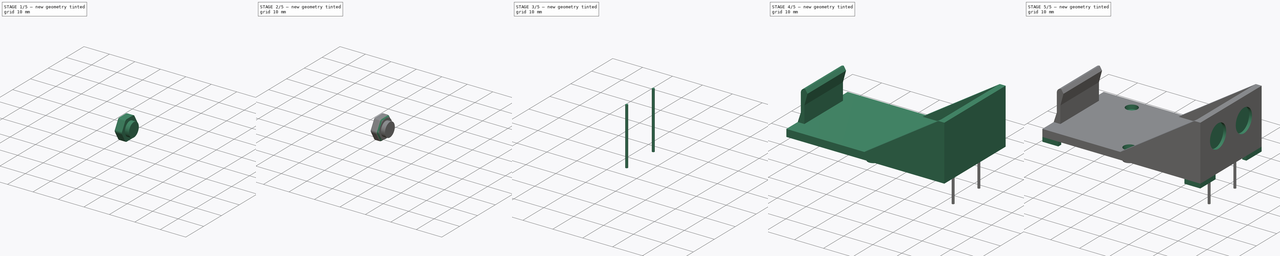
[diagram: build sequence overview — one tinted view per stage of 5, left to right]
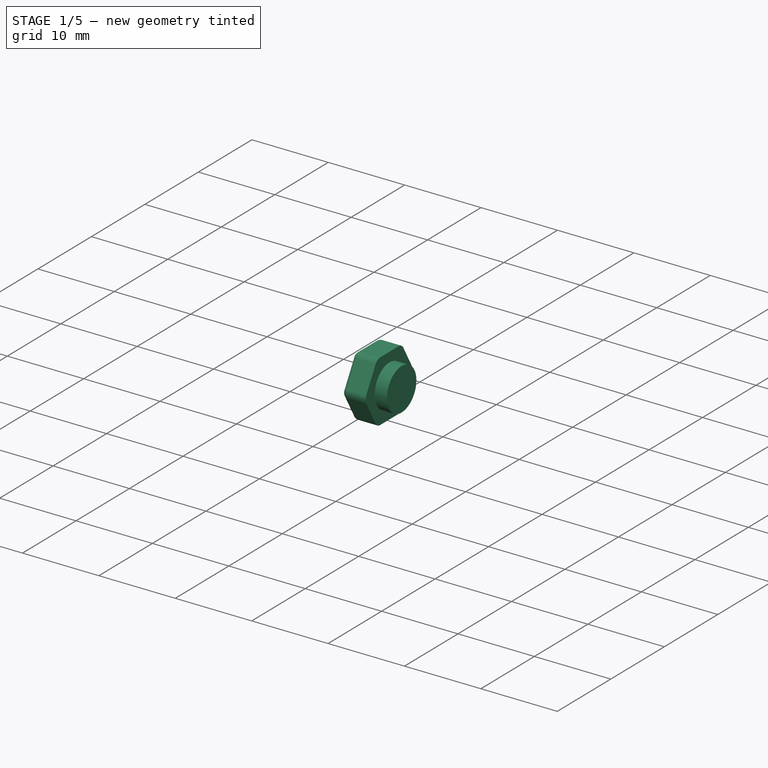
[diagram: stage 1 of 5 — iso view after this stage's code; geometry added in this stage tinted green]
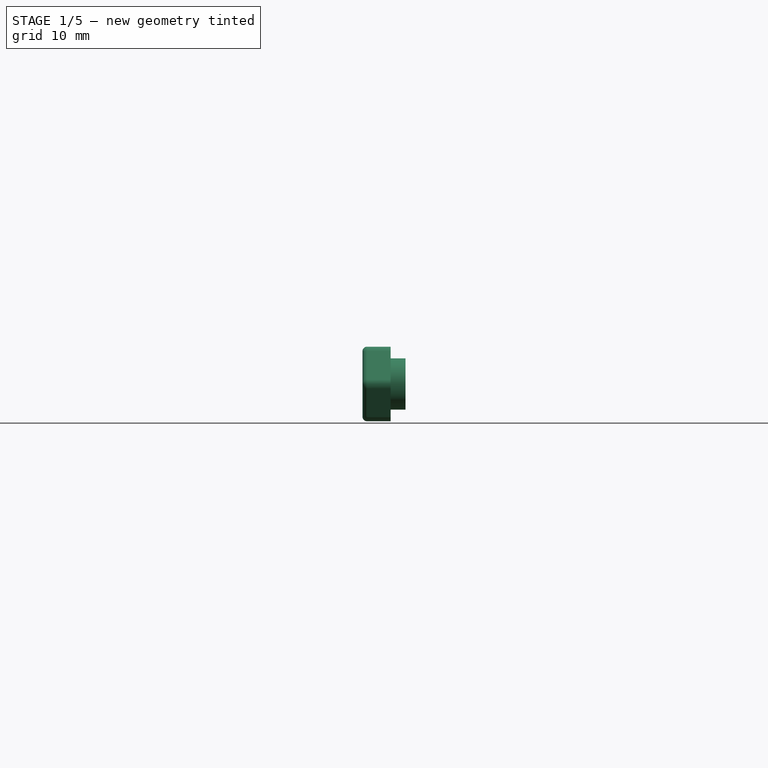
[diagram: stage 1 of 5 — front view after this stage's code; geometry added in this stage tinted green]
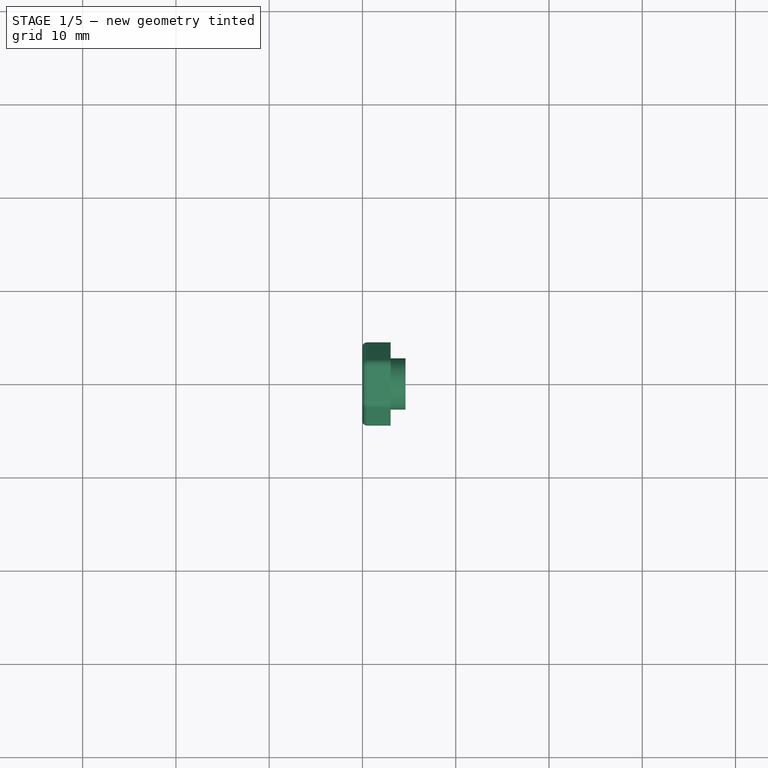
[diagram: stage 1 of 5 — top view after this stage's code; geometry added in this stage tinted green]
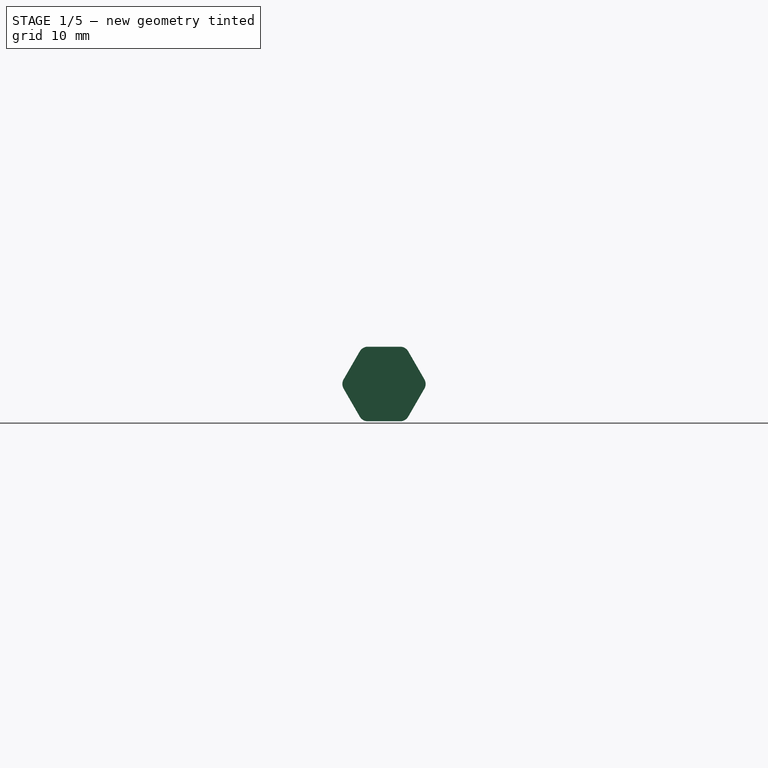
[diagram: stage 1 of 5 — right view after this stage's code; geometry added in this stage tinted green]
FCSTD DOCUMENT  (FreeCAD 0.18R4 (GitTag))
Label: BatteryHolder_Eagle_12BH611-GR
License: All rights reserved
LicenseURL: http://en.wikipedia.org/wiki/All_rights_reserved
objects: Sketcher::SketchObject×18, PartDesign::Pocket×10, PartDesign::Pad×8, PartDesign::Fillet×7, PartDesign::Body×4, PartDesign::Mirrored×2, Part::Feature×2, PartDesign::MultiTransform×1, Part::FeaturePython×1, App::Part×1
note: 71 computed .brp shape members not serialized (recipe doc carries the construction recipe); baked Part::Feature solids carry a one-line shape summary decoded from their .brp

FEATURE [Part::Feature] Fusion001  label="Eyelet_bended_Anode"
  Placement = pos=(26.6,-6.35,11.5) rot=(0.57735,0.57735,0.57735;2.0944rad)
  shape: bbox 8.511 x 5.54 x 13.94 mm, 23 faces (baked)
FEATURE [Part::Feature] Fusion002  label="Eyelet_bended_Cathode"
  Placement = pos=(26.6,6.35,11.5) rot=(0.57735,0.57735,0.57735;2.0944rad)
  shape: bbox 8.511 x 5.54 x 13.94 mm, 23 faces (baked)
FEATURE [Sketcher::SketchObject] Sketch009  label="Sketch_OuterHeagon"
  MapMode = 5
  Placement = pos=(0,0,0) rot=(0.57735,0.57735,0.57735;2.0944rad)
  Support = -> [YZ_Plane001]
  sketch-geometry (7):
    g0: LineSegment StartX=4.6188 StartY=0 StartZ=0 EndX=2.3094 EndY=4 EndZ=0
    g1: LineSegment StartX=2.3094 StartY=4 StartZ=0 EndX=-2.3094 EndY=4 EndZ=0
    g2: LineSegment StartX=-2.3094 StartY=4 StartZ=0 EndX=-4.6188 EndY=9e-16 EndZ=0
    g3: LineSegment StartX=-4.6188 StartY=9e-16 StartZ=0 EndX=-2.3094 EndY=-4 EndZ=0
    g4: LineSegment StartX=-2.3094 StartY=-4 StartZ=0 EndX=2.3094 EndY=-4 EndZ=0
    g5: LineSegment StartX=2.3094 StartY=-4 StartZ=0 EndX=4.6188 EndY=0 EndZ=0
    g6: Circle [constr] CenterX=0 CenterY=0 CenterZ=0 NormalX=0 NormalY=0 NormalZ=1 AngleXU=0 Radius=4.6188
  constraints (16):
    c: Coincident(g0,g1)
    c: Coincident(g1,g2)
    c: Coincident(g2,g3)
    c: Coincident(g3,g4)
    c: Coincident(g4,g5)
    c: Coincident(g5,g0)
    c: Equal(g0, g1-g5) x5
    c: PointOnObject(g0,g6)
    c: PointOnObject(g1,g6)
    c: PointOnObject(g2,g6)
    c: PointOnObject(g3,g6)
    c: PointOnObject(g4,g6)
    c: PointOnObject(g5,g6)
    c: Coincident(g6,g-1)
    c: PointOnObject(g5,g-1)
    c: DistanceY(g4,g0) = 8
FEATURE [PartDesign::Pad] Pad005  label="Pad_OuterHeagon"
  Length = 4.62
  Length2 = 100
  Placement = pos=(0,0,0) rot=(0.57735,0.57735,0.57735;2.0944rad)
  Profile = -> Sketch009
  Type = 0
FEATURE [Sketcher::SketchObject] Sketch010  label="Sketch_InnerHeagon"
  MapMode = 5
  Placement = pos=(0,0,0) rot=(0.57735,0.57735,0.57735;2.0944rad)
  Support = -> [YZ_Plane001]
  sketch-geometry (7):
    g0: LineSegment StartX=3.17543 StartY=0 StartZ=0 EndX=1.58771 EndY=2.75 EndZ=0
    g1: LineSegment StartX=1.58771 StartY=2.75 StartZ=0 EndX=-1.58771 EndY=2.75 EndZ=0
    g2: LineSegment StartX=-1.58771 StartY=2.75 StartZ=0 EndX=-3.17543 EndY=1.7635e-12 EndZ=0
    g3: LineSegment StartX=-3.17543 StartY=1.7635e-12 StartZ=0 EndX=-1.58771 EndY=-2.75 EndZ=0
    g4: LineSegment StartX=-1.58771 StartY=-2.75 StartZ=0 EndX=1.58771 EndY=-2.75 EndZ=0
    g5: LineSegment StartX=1.58771 StartY=-2.75 StartZ=0 EndX=3.17543 EndY=0 EndZ=0
    g6: Circle [constr] CenterX=0 CenterY=0 CenterZ=0 NormalX=0 NormalY=0 NormalZ=1 AngleXU=0 Radius=3.17543
  constraints (16):
    c: Coincident(g0,g1)
    c: Coincident(g1,g2)
    c: Coincident(g2,g3)
    c: Coincident(g3,g4)
    c: Coincident(g4,g5)
    c: Coincident(g5,g0)
    c: Equal(g0, g1-g5) x5
    c: PointOnObject(g0,g6)
    c: PointOnObject(g1,g6)
    c: PointOnObject(g2,g6)
    c: PointOnObject(g3,g6)
    c: PointOnObject(g4,g6)
    c: PointOnObject(g5,g6)
    c: Coincident(g6,g-1)
    c: PointOnObject(g5,g-1)
    c: DistanceY(g4,g0) = 5.5
FEATURE [PartDesign::Pocket] Pocket004  label="Pocket_InnerHeagon"
  BaseFeature = -> Pad005
  Length = 3
  Length2 = 100
  Placement = pos=(0,0,0) rot=(0.57735,0.57735,0.57735;2.0944rad)
  Profile = -> Sketch010
  Reversed = true
  Type = 0
FEATURE [PartDesign::Fillet] Fillet
  Base = -> Pocket004 [Edge6,Edge3,Edge9,Edge12,Edge13,Edge11,Edge19,Edge14,Edge15,Edge16,Edge17,Edge18]
  BaseFeature = -> Pocket004
  Placement = pos=(0,0,0) rot=(0.57735,0.57735,0.57735;2.0944rad)
  Radius = 0.5
FEATURE [PartDesign::Fillet] Fillet001
  Base = -> Fillet [Edge1,Edge4,Edge16,Edge5,Edge17,Edge33]
  BaseFeature = -> Fillet
  Placement = pos=(0,0,0) rot=(0.57735,0.57735,0.57735;2.0944rad)
  Radius = 1
FEATURE [Sketcher::SketchObject] Sketch011  label="Sketch_PocketRear"
  ExternalGeometry = -> [Fillet001]
  MapMode = 5
  Placement = pos=(4.62,-3.1e-15,2.1e-15) rot=(0.57735,0.57735,0.57735;2.0944rad)
  Support = -> [Fillet001]
  sketch-geometry (8):
    g0: Circle CenterX=0 CenterY=0 CenterZ=0 NormalX=0 NormalY=0 NormalZ=1 AngleXU=0 Radius=2.75
    g1: LineSegment StartX=4.6188 StartY=0 StartZ=0 EndX=2.3094 EndY=4 EndZ=0
    g2: LineSegment StartX=2.3094 StartY=4 StartZ=0 EndX=-2.3094 EndY=4 EndZ=0
    g3: LineSegment StartX=-2.3094 StartY=4 StartZ=0 EndX=-4.6188 EndY=-1.69e-14 EndZ=0
    g4: LineSegment StartX=-4.6188 StartY=-1.69e-14 StartZ=0 EndX=-2.3094 EndY=-4 EndZ=0
    g5: LineSegment StartX=-2.3094 StartY=-4 StartZ=0 EndX=2.3094 EndY=-4 EndZ=0
    g6: LineSegment StartX=2.3094 StartY=-4 StartZ=0 EndX=4.6188 EndY=0 EndZ=0
    g7: Circle [constr] CenterX=0 CenterY=0 CenterZ=0 NormalX=0 NormalY=0 NormalZ=1 AngleXU=0 Radius=4.6188
  constraints (18):
    c: Coincident(g0,g-1)
    c: Diameter(g0) = 5.5
    c: Coincident(g1,g2)
    c: Coincident(g2,g3)
    c: Coincident(g3,g4)
    c: Coincident(g4,g5)
    c: Coincident(g5,g6)
    c: Coincident(g6,g1)
    c: Equal(g1, g2-g6) x5
    c: PointOnObject(g1,g7)
    c: PointOnObject(g2,g7)
    c: PointOnObject(g3,g7)
    c: PointOnObject(g4,g7)
    c: PointOnObject(g5,g7)
    c: PointOnObject(g6,g7)
    c: Coincident(g7,g0)
    c: PointOnObject(g6,g-1)
    c: Horizontal(g1,g-3)
FEATURE [PartDesign::Pocket] Pocket005  label="Pocket_Rear"
  BaseFeature = -> Fillet001
  Length = 1.6
  Length2 = 100
  Placement = pos=(0,0,0) rot=(0.57735,0.57735,0.57735;2.0944rad)
  Profile = -> Sketch011
  Type = 0
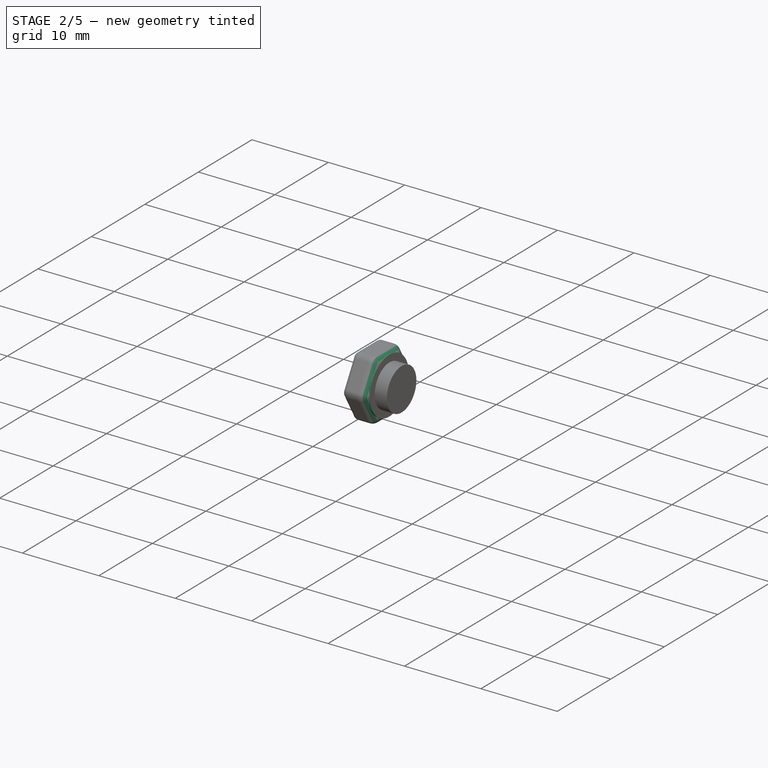
[diagram: stage 2 of 5 — iso view after this stage's code; geometry added in this stage tinted green]
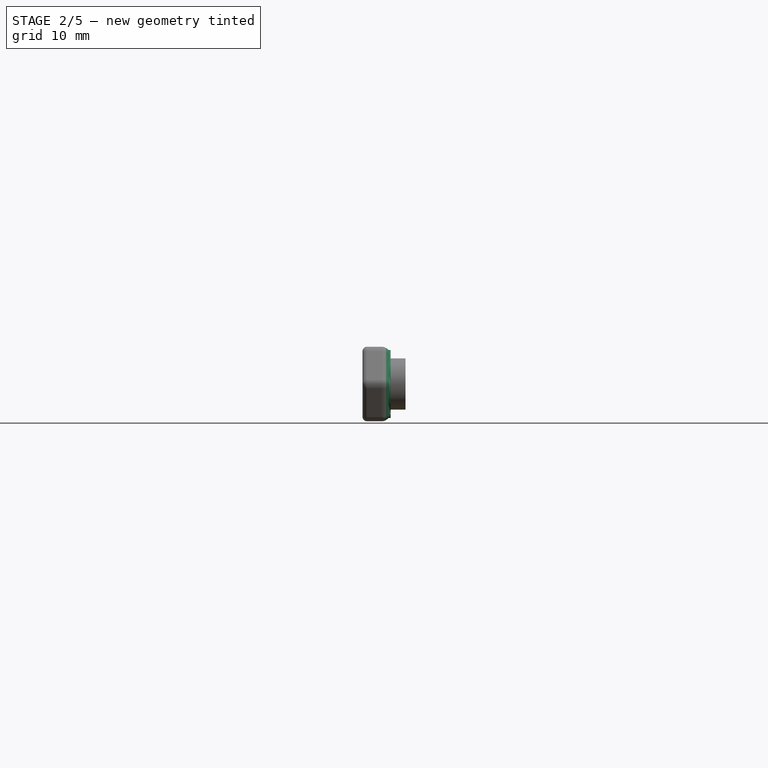
[diagram: stage 2 of 5 — front view after this stage's code; geometry added in this stage tinted green]
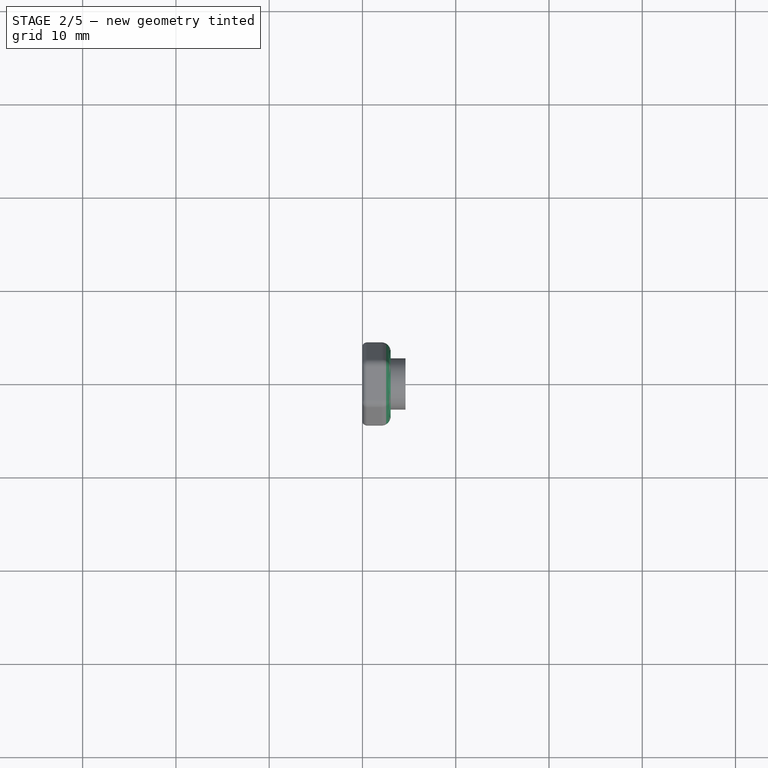
[diagram: stage 2 of 5 — top view after this stage's code; geometry added in this stage tinted green]
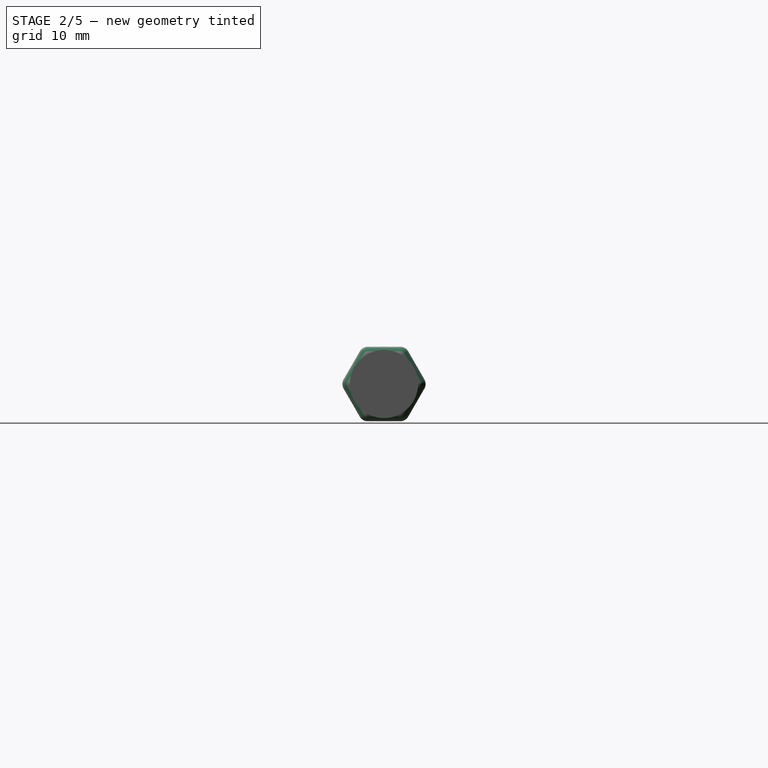
[diagram: stage 2 of 5 — right view after this stage's code; geometry added in this stage tinted green]
FEATURE [PartDesign::Body] Body  label="Body_Housing"
  Group = -> [Sketch,Pad,Sketch001,Pad001,Sketch002,Pocket,Sketch003,Pad002,Sketch004,Pocket001,Sketch005,Pad003,Sketch006,Pocket002,Sketch007,Pocket003,Sketch008,Pad004,MultiTransform,Mirrored,Mirrored001,Sketch012,Pocket006]
  Origin = -> Origin
  Tip = -> Pocket006
FEATURE [Sketcher::SketchObject] Sketch013  label="Sketch_OuterMountingRing"
  MapMode = 5
  Placement = pos=(0,0,0) rot=(0.57735,0.57735,0.57735;2.0944rad)
  Support = -> [YZ_Plane002]
  sketch-geometry (1):
    g0: Circle CenterX=0 CenterY=0 CenterZ=0 NormalX=0 NormalY=0 NormalZ=1 AngleXU=0 Radius=3.65
  constraints (2):
    c: Coincident(g0,g-1)
    c: Diameter(g0) = 7.3
FEATURE [PartDesign::Pad] Pad006  label="Pad_OuterMountingRing"
  Length = 4.62
  Length2 = 100
  Placement = pos=(0,0,0) rot=(0.57735,0.57735,0.57735;2.0944rad)
  Profile = -> Sketch013
  Type = 0
FEATURE [Sketcher::SketchObject] Sketch014  label="Sketch_InnerBore"
  MapMode = 5
  Placement = pos=(0,0,0) rot=(0.57735,0.57735,0.57735;2.0944rad)
  Support = -> [YZ_Plane002]
  sketch-geometry (1):
    g0: Circle CenterX=0 CenterY=0 CenterZ=0 NormalX=0 NormalY=0 NormalZ=1 AngleXU=0 Radius=2.25
  constraints (2):
    c: Coincident(g0,g-1)
    c: Diameter(g0) = 4.5
FEATURE [PartDesign::Pocket] Pocket007  label="Pocket_InnerBore"
  BaseFeature = -> Pad006
  Length = 2.2
  Length2 = 100
  Placement = pos=(0,0,0) rot=(0.57735,0.57735,0.57735;2.0944rad)
  Profile = -> Sketch014
  Reversed = true
  Type = 0
FEATURE [Sketcher::SketchObject] Sketch015  label="Sketch_OuterCathodeCylinder"
  MapMode = 5
  Placement = pos=(0,0,0) rot=(0.57735,0.57735,0.57735;2.0944rad)
  Support = -> [YZ_Plane002]
  sketch-geometry (2):
    g0: Circle CenterX=0 CenterY=0 CenterZ=0 NormalX=0 NormalY=0 NormalZ=1 AngleXU=0 Radius=2.9
    g1: Circle CenterX=0 CenterY=0 CenterZ=0 NormalX=0 NormalY=0 NormalZ=1 AngleXU=0 Radius=4.5
  constraints (4):
    c: Coincident(g0,g-1)
    c: Diameter(g0) = 5.8
    c: Coincident(g1,g0)
    c: Diameter(g1) = 9
FEATURE [PartDesign::Pocket] Pocket008  label="Pocket_OuterCathodeCylinder"
  BaseFeature = -> Pocket007
  Length = 2.6
  Length2 = 100
  Placement = pos=(0,0,0) rot=(0.57735,0.57735,0.57735;2.0944rad)
  Profile = -> Sketch015
  Reversed = true
  Type = 0
FEATURE [Sketcher::SketchObject] Sketch016  label="Sketch_PocketRearC"
  MapMode = 5
  Placement = pos=(4.62,-1e-15,1e-15) rot=(0.57735,0.57735,0.57735;2.0944rad)
  Support = -> [Pocket008]
  sketch-geometry (2):
    g0: Circle CenterX=0 CenterY=0 CenterZ=0 NormalX=0 NormalY=0 NormalZ=1 AngleXU=0 Radius=2.75
    g1: Circle CenterX=0 CenterY=0 CenterZ=0 NormalX=0 NormalY=0 NormalZ=1 AngleXU=0 Radius=4.5
  constraints (4):
    c: Coincident(g0,g-1)
    c: Diameter(g0) = 5.5
    c: Coincident(g1,g0)
    c: Diameter(g1) = 9
FEATURE [PartDesign::Pocket] Pocket009  label="Pocket_RearC"
  BaseFeature = -> Pocket008
  Length = 1.6
  Length2 = 100
  Placement = pos=(0,0,0) rot=(0.57735,0.57735,0.57735;2.0944rad)
  Profile = -> Sketch016
  Type = 0
FEATURE [PartDesign::Fillet] Fillet002
  Base = -> Pocket005 [Edge14]
  BaseFeature = -> Pocket005
  Placement = pos=(0,0,0) rot=(0.57735,0.57735,0.57735;2.0944rad)
  Radius = 1
FEATURE [PartDesign::Fillet] Fillet003
  Base = -> Fillet002 [Edge64]
  BaseFeature = -> Fillet002
  Placement = pos=(0,0,0) rot=(0.57735,0.57735,0.57735;2.0944rad)
  Radius = 0.2
FEATURE [PartDesign::Body] Body001  label="Body_Anode"
  Group = -> [Sketch009,Pad005,Sketch010,Pocket004,Fillet,Fillet001,Sketch011,Pocket005,Fillet002,Fillet003]
  Origin = -> Origin001
  Placement = pos=(22,-6.35,11.5) rot=(0,0,1;0rad)
  Tip = -> Fillet003
FEATURE [App::Part] Part  label="Part_BatteryHolder_Eagle_12BH611"
  Group = -> [Body,Body001,Body002,Body003,Array,Fusion002,Fusion001]
  Origin = -> Origin004
  Placement = pos=(-24.15,6.35,1.5) rot=(0,0,1;0rad)
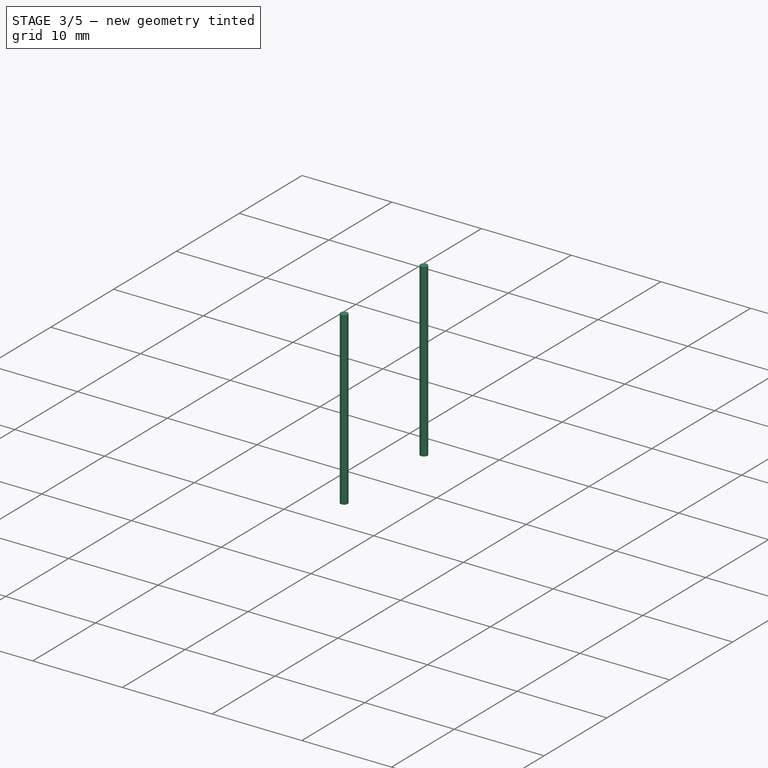
[diagram: stage 3 of 5 — iso view after this stage's code; geometry added in this stage tinted green]
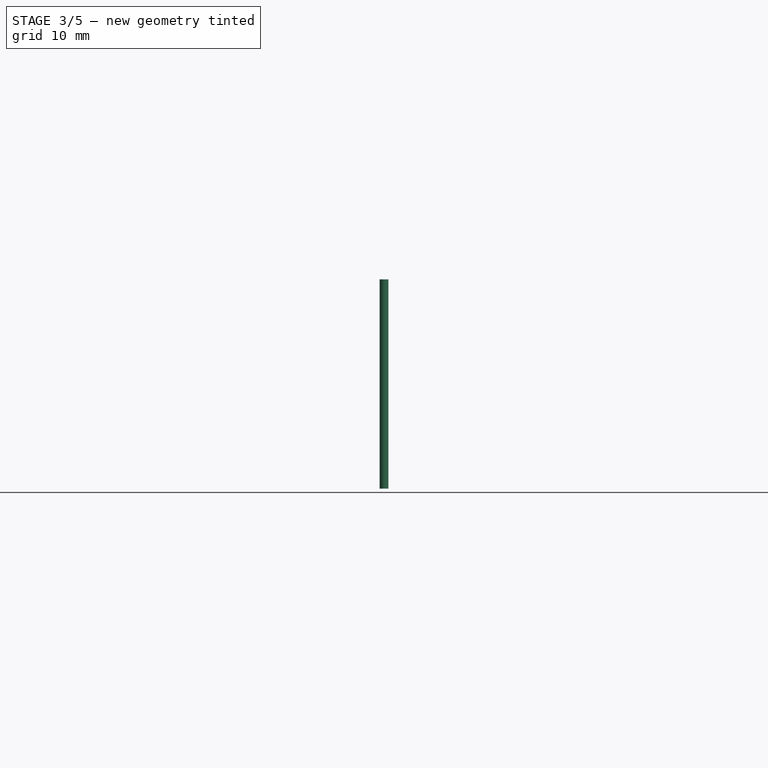
[diagram: stage 3 of 5 — front view after this stage's code; geometry added in this stage tinted green]
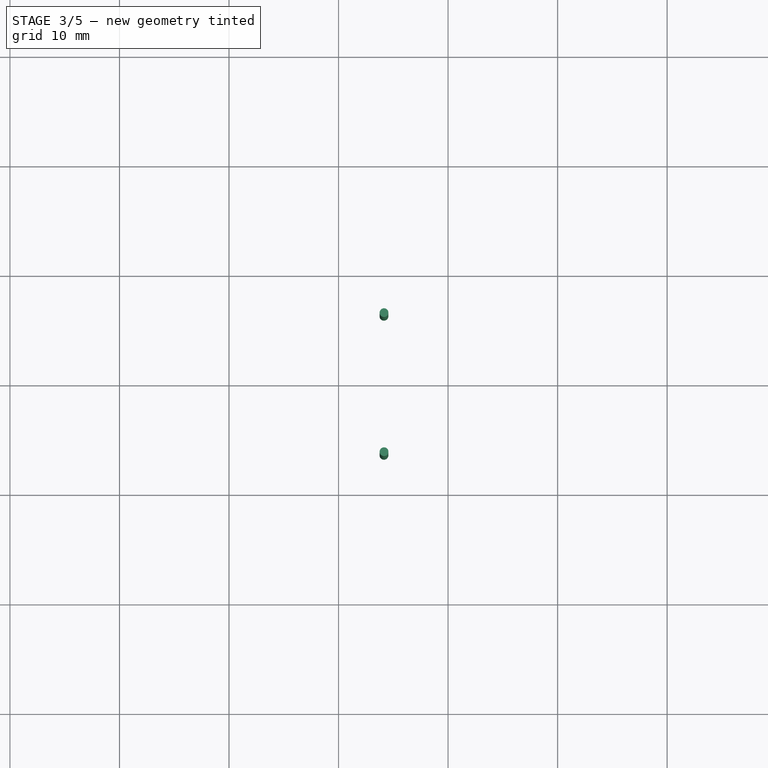
[diagram: stage 3 of 5 — top view after this stage's code; geometry added in this stage tinted green]
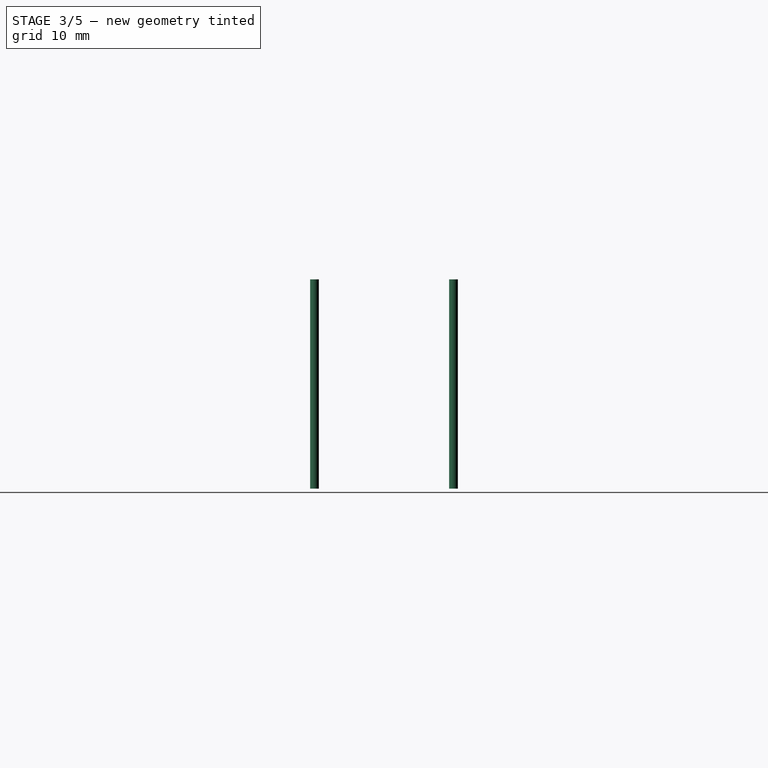
[diagram: stage 3 of 5 — right view after this stage's code; geometry added in this stage tinted green]
FEATURE [PartDesign::Fillet] Fillet004
  Base = -> Pocket009 [Edge7]
  BaseFeature = -> Pocket009
  Placement = pos=(0,0,0) rot=(0.57735,0.57735,0.57735;2.0944rad)
  Radius = 0.2
FEATURE [PartDesign::Fillet] Fillet005
  Base = -> Fillet004 [Edge12,Edge11]
  BaseFeature = -> Fillet004
  Placement = pos=(0,0,0) rot=(0.57735,0.57735,0.57735;2.0944rad)
  Radius = 0.3
FEATURE [PartDesign::Fillet] Fillet006
  Base = -> Fillet005 [Edge14]
  BaseFeature = -> Fillet005
  Placement = pos=(0,0,0) rot=(0.57735,0.57735,0.57735;2.0944rad)
  Radius = 0.3
FEATURE [PartDesign::Body] Body002  label="Body_Cathode"
  Group = -> [Sketch013,Pad006,Sketch014,Pocket007,Sketch015,Pocket008,Sketch016,Pocket009,Fillet004,Fillet005,Fillet006]
  Origin = -> Origin002
  Placement = pos=(22,6.35,11.5) rot=(0,0,1;0rad)
  Tip = -> Fillet006
  expr: Placement.Base.z = Body_Anode.Placement.Base.z
  expr: Placement.Base.y = -Body_Anode.Placement.Base.y
  expr: Placement.Base.x = Body_Anode.Placement.Base.x
FEATURE [Sketcher::SketchObject] Sketch017
  MapMode = 5
  Support = -> [XY_Plane003]
  expr: Constraints[1] = Body_Cathode.Placement.Base.y
  sketch-geometry (1):
    g0: Circle CenterX=24.15 CenterY=6.35 CenterZ=0 NormalX=0 NormalY=0 NormalZ=1 AngleXU=0 Radius=0.4
  constraints (3):
    c: Diameter(g0) = 0.8
    c: DistanceY(g-1,g0) = 6.35
    c: DistanceX(g-1,g0) = 24.15
FEATURE [PartDesign::Pad] Pad007
  Length = 8.7
  Length2 = 10.4
  Profile = -> Sketch017
  Type = 4
FEATURE [PartDesign::Body] Body003  label="Body_Pin"
  Group = -> [Sketch017,Pad007]
  Origin = -> Origin003
  Tip = -> Pad007
FEATURE [Part::FeaturePython] Array  label="Array_Pins"  # Draft array (typed FeaturePython)
  Angle = 360
  ArrayType = 0
  Axis = (0,0,1)
  Base = -> Body003
  Center = (0,0,0)
  Fuse = false
  IntervalAxis = (0,0,0)
  IntervalX = (1,0,0)
  IntervalY = (0,-12.7,0)
  IntervalZ = (0,0,1)
  NumberPolar = 1
  NumberX = 1
  NumberY = 2
  NumberZ = 1
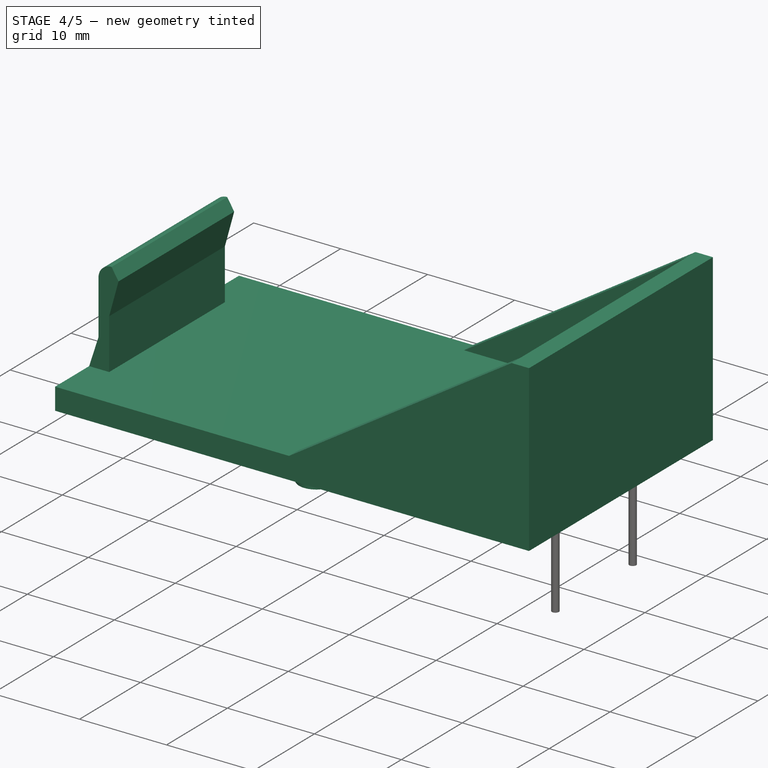
[diagram: stage 4 of 5 — iso view after this stage's code; geometry added in this stage tinted green]
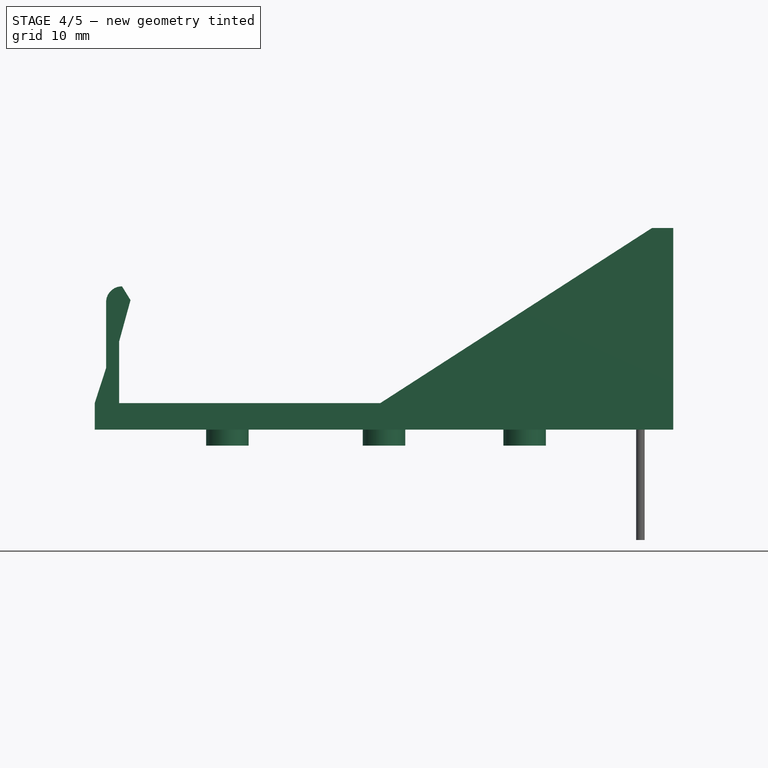
[diagram: stage 4 of 5 — front view after this stage's code; geometry added in this stage tinted green]
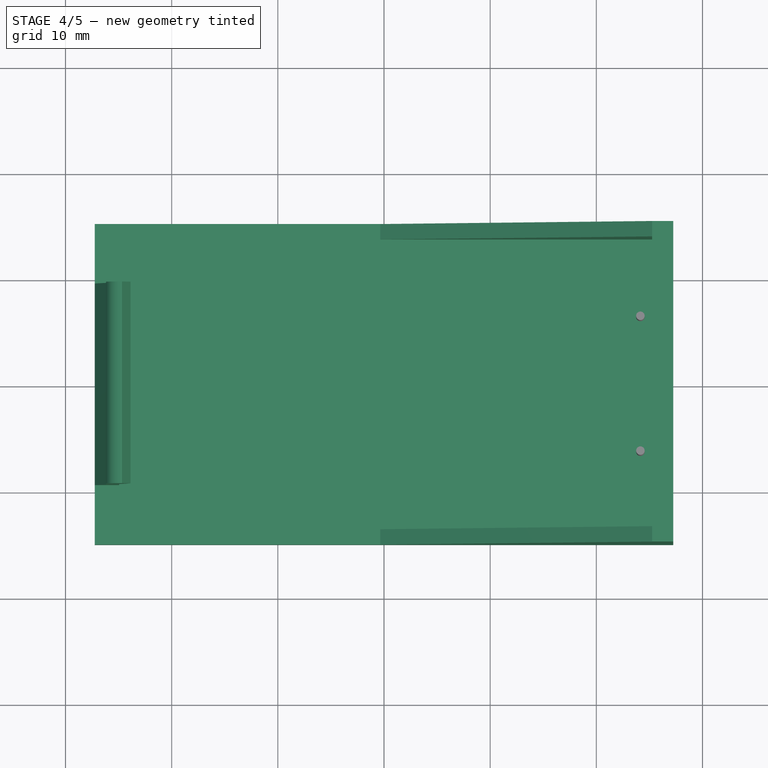
[diagram: stage 4 of 5 — top view after this stage's code; geometry added in this stage tinted green]
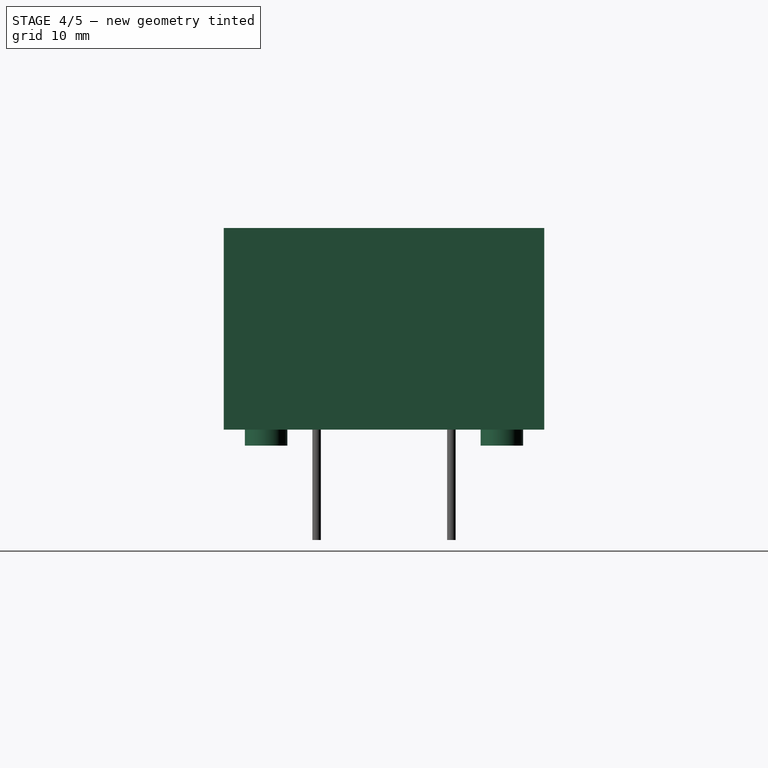
[diagram: stage 4 of 5 — right view after this stage's code; geometry added in this stage tinted green]
FEATURE [Sketcher::SketchObject] Sketch  label="Sketch_BasePlate"
  MapMode = 5
  Support = -> [XY_Plane]
  sketch-geometry (4):
    g0: LineSegment StartX=-27.25 StartY=15.1 StartZ=0 EndX=27.25 EndY=15.1 EndZ=0
    g1: LineSegment StartX=27.25 StartY=15.1 StartZ=0 EndX=27.25 EndY=-15.1 EndZ=0
    g2: LineSegment StartX=27.25 StartY=-15.1 StartZ=0 EndX=-27.25 EndY=-15.1 EndZ=0
    g3: LineSegment StartX=-27.25 StartY=-15.1 StartZ=0 EndX=-27.25 EndY=15.1 EndZ=0
  constraints (10):
    c: Coincident(g0,g1)
    c: Coincident(g1,g2)
    c: Coincident(g2,g3)
    c: Coincident(g3,g0)
    c: Horizontal(g2)
    c: Vertical(g3)
    c: Symmetric(g0,g1,g-1)
    c: Symmetric(g0,g0,g-2)
    c: DistanceX(g0,g0) = 54.5
    c: DistanceY(g1,g1) = 30.2
FEATURE [PartDesign::Pad] Pad  label="Pad_BasePlate"
  Length = 2.5
  Length2 = 100
  Profile = -> Sketch
  Type = 0
FEATURE [Sketcher::SketchObject] Sketch001  label="Sketch_SideWalls"
  ExternalGeometry = -> [Pad]
  MapMode = 5
  Placement = pos=(0,0,2.5) rot=(0,0,1;0rad)
  Support = -> [Pad]
  sketch-geometry (8):
    g0: LineSegment StartX=27.25 StartY=15.1 StartZ=0 EndX=27.25 EndY=-15.1 EndZ=0
    g1: LineSegment StartX=27.25 StartY=-15.1 StartZ=0 EndX=-0.35 EndY=-15.1 EndZ=0
    g2: LineSegment StartX=-0.35 StartY=-15.1 StartZ=0 EndX=-0.35 EndY=-13.65 EndZ=0
    g3: LineSegment StartX=-0.35 StartY=-13.65 StartZ=0 EndX=25.25 EndY=-13.65 EndZ=0
    g4: LineSegment StartX=25.25 StartY=-13.65 StartZ=0 EndX=25.25 EndY=13.65 EndZ=0
    g5: LineSegment StartX=25.25 StartY=13.65 StartZ=0 EndX=-0.35 EndY=13.65 EndZ=0
    g6: LineSegment StartX=-0.35 StartY=13.65 StartZ=0 EndX=-0.35 EndY=15.1 EndZ=0
    g7: LineSegment StartX=-0.35 StartY=15.1 StartZ=0 EndX=27.25 EndY=15.1 EndZ=0
  constraints (22):
    c: Coincident(g-4,g0)
    c: Coincident(g0,g-5)
    c: Coincident(g0,g1)
    c: PointOnObject(g1,g-5)
    c: Coincident(g1,g2)
    c: Vertical(g2)
    c: Coincident(g2,g3)
    c: Horizontal(g3)
    c: Coincident(g3,g4)
    c: Vertical(g4)
    c: Coincident(g4,g5)
    c: Horizontal(g5)
    c: Coincident(g5,g6)
    c: PointOnObject(g6,g-3)
    c: Vertical(g6)
    c: Coincident(g6,g7)
    c: Coincident(g7,g0)
    c: DistanceX(g1,g1) = 27.6
    c: DistanceX(g4,g0) = 2
    c: DistanceY(g6,g6) = 1.45
    c: Equal(g7,g1)
    c: Equal(g6,g2)
FEATURE [PartDesign::Pad] Pad001  label="Pad_SideWalls"
  BaseFeature = -> Pad
  Length = 16.5
  Length2 = 100
  Profile = -> Sketch001
  Type = 0
FEATURE [Sketcher::SketchObject] Sketch002  label="Sketch_BevelSideWalls"
  ExternalGeometry = -> [Pad001]
  MapMode = 5
  Placement = pos=(0,-15.1,0) rot=(1,0,0;1.5708rad)
  Support = -> [Pad001]
  sketch-geometry (5):
    g0: LineSegment StartX=-0.35 StartY=2.5 StartZ=0 EndX=25.25 EndY=19 EndZ=0
    g1: LineSegment StartX=25.25 StartY=19 StartZ=0 EndX=27.25 EndY=19 EndZ=0
    g2: LineSegment StartX=27.25 StartY=19 StartZ=0 EndX=27.25 EndY=21 EndZ=0
    g3: LineSegment StartX=27.25 StartY=21 StartZ=0 EndX=-0.35 EndY=21 EndZ=0
    g4: LineSegment StartX=-0.35 StartY=21 StartZ=0 EndX=-0.35 EndY=2.5 EndZ=0
  constraints (13):
    c: Coincident(g-5,g0)
    c: PointOnObject(g0,g-4)
    c: Coincident(g0,g1)
    c: Coincident(g1,g-4)
    c: Coincident(g1,g2)
    c: Vertical(g2)
    c: Coincident(g2,g3)
    c: Horizontal(g3)
    c: DistanceX(g1,g1) = 2
    c: Equal(g2,g1)
    c: Coincident(g4,g3)
    c: Coincident(g4,g0)
    c: Vertical(g4)
FEATURE [PartDesign::Pocket] Pocket  label="Pocket_BevelSideWalls"
  BaseFeature = -> Pad001
  Length = 5
  Length2 = 100
  Profile = -> Sketch002
  Type = 1
FEATURE [Sketcher::SketchObject] Sketch003  label="Sketch_RetainingPlate"
  ExternalGeometry = -> [Pocket]
  MapMode = 5
  Placement = pos=(0,-15.1,0) rot=(1,0,0;1.5708rad)
  Support = -> [Pocket]
  sketch-geometry (7):
    g0: LineSegment StartX=-27.25 StartY=2.5 StartZ=0 EndX=-26.1778 EndY=5.8 EndZ=0
    g1: LineSegment StartX=-26.1778 StartY=5.8 StartZ=0 EndX=-26.1778 EndY=12 EndZ=0
    g2: ArcOfCircle CenterX=-24.6778 CenterY=12 CenterZ=0 NormalX=0 NormalY=0 NormalZ=1 AngleXU=0 Radius=1.5 StartAngle=1.5708 EndAngle=3.14159
    g3: LineSegment StartX=-24.6778 StartY=13.5 StartZ=0 EndX=-23.8778 EndY=12.2 EndZ=0
    g4: LineSegment StartX=-23.8778 StartY=12.2 StartZ=0 EndX=-24.95 EndY=8.3 EndZ=0
    g5: LineSegment StartX=-24.95 StartY=8.3 StartZ=0 EndX=-24.95 EndY=2.5 EndZ=0
    g6: LineSegment StartX=-24.95 StartY=2.5 StartZ=0 EndX=-27.25 EndY=2.5 EndZ=0
  constraints (20):
    c: Coincident(g-3,g0)
    c: Coincident(g0,g1)
    c: Vertical(g1)
    c: Tangent(g1,g2) = 1.5708
    c: Coincident(g2,g3)
    c: Coincident(g3,g4)
    c: Coincident(g4,g5)
    c: PointOnObject(g5,g-3)
    c: Vertical(g5)
    c: Coincident(g5,g6)
    c: Coincident(g6,g0)
    c: Angle(g6,g0) = 1.25664
    c: Vertical(g2,g2)
    c: DistanceX(g1,g3) = 2.3
    c: DistanceY(g0,g2) = 11
    c: DistanceX(g6,g6) = 2.3
    c: DistanceY(g5,g5) = 5.8
    c: DistanceY(g1,g1) = 6.2
    c: DistanceY(g3,g2) = 1.3
    c: DistanceY(g0,g0) = 3.3
FEATURE [PartDesign::Pad] Pad002  label="Pad_RetainingPlate"
  BaseFeature = -> Pocket
  Length = 24.6
  Length2 = 100
  Profile = -> Sketch003
  Reversed = true
  Type = 0
FEATURE [Sketcher::SketchObject] Sketch004  label="Sketch_PocketRetainingPlate"
  ExternalGeometry = -> [Pad002]
  MapMode = 5
  Placement = pos=(-27.25,0,0) rot=(0.57735,-0.57735,-0.57735;2.0944rad)
  Support = -> [Pad002]
  expr: Constraints[10] = Sketch_RetainingPlate.Constraints[14]
  sketch-geometry (4):
    g0: LineSegment StartX=15.1 StartY=2.5 StartZ=0 EndX=9.5 EndY=2.5 EndZ=0
    g1: LineSegment StartX=9.5 StartY=2.5 StartZ=0 EndX=9.5 EndY=13.5 EndZ=0
    g2: LineSegment StartX=9.5 StartY=13.5 StartZ=0 EndX=15.1 EndY=13.5 EndZ=0
    g3: LineSegment StartX=15.1 StartY=13.5 StartZ=0 EndX=15.1 EndY=2.5 EndZ=0
  constraints (11):
    c: Coincident(g0,g1)
    c: Coincident(g1,g2)
    c: Coincident(g2,g3)
    c: Coincident(g3,g0)
    c: Horizontal(g0)
    c: Horizontal(g2)
    c: Vertical(g1)
    c: Vertical(g3)
    c: Coincident(g0,g-3)
    c: DistanceX(g0,g0) = 5.6
    c: DistanceY(g3,g3) = 11
FEATURE [PartDesign::Pocket] Pocket001  label="Pocket_RetainingPlate"
  BaseFeature = -> Pad002
  Length = 5
  Length2 = 100
  Profile = -> Sketch004
  Type = 0
FEATURE [Sketcher::SketchObject] Sketch005  label="Sketch_MountingPads"
  MapMode = 5
  Placement = pos=(0,0,2.5) rot=(0,0,1;0rad)
  Support = -> [Pocket001]
  sketch-geometry (4):
    g0: Circle CenterX=-14.75 CenterY=11.1 CenterZ=0 NormalX=0 NormalY=0 NormalZ=1 AngleXU=0 Radius=2
    g1: Circle CenterX=13.25 CenterY=11.1 CenterZ=0 NormalX=0 NormalY=0 NormalZ=1 AngleXU=0 Radius=2
    g2: Circle CenterX=0 CenterY=-11.1 CenterZ=0 NormalX=0 NormalY=0 NormalZ=1 AngleXU=0 Radius=2
    g3: GeomPoint X=0 Y=11.1 Z=0
  constraints (10):
    c: PointOnObject(g2,g-2)
    c: DistanceX(g0,g1) = 28
    c: Horizontal(g3,g0)
    c: Symmetric(g3,g2,g-1)
    c: Equal(g0,g2)
    c: Equal(g2,g1)
    c: Diameter(g1) = 4
    c: DistanceY(g2,g0) = 22.2
    c: DistanceX(g-1,g1) = 13.25
    c: Horizontal(g1,g0)
FEATURE [PartDesign::Pad] Pad003  label="Pad_MountingHoles"
  BaseFeature = -> Pocket001
  Length = 4
  Length2 = 100
  Profile = -> Sketch005
  Reversed = true
  Type = 0
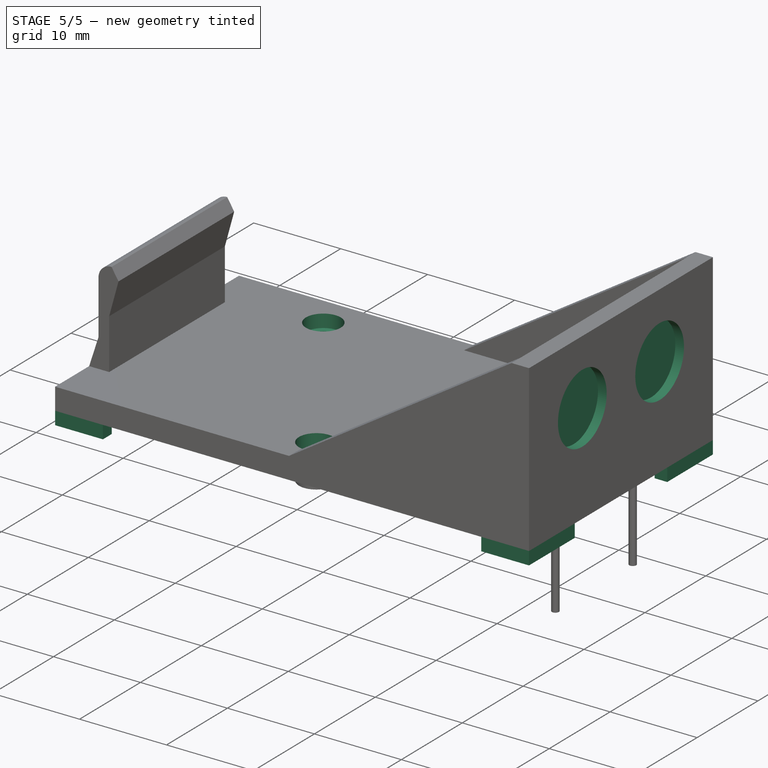
[diagram: stage 5 of 5 — iso view after this stage's code; geometry added in this stage tinted green]
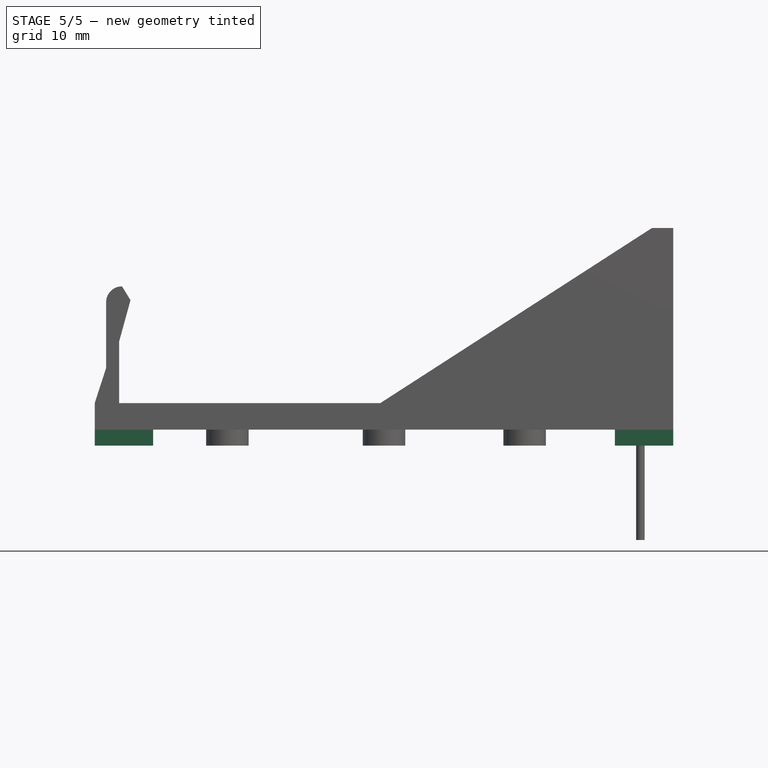
[diagram: stage 5 of 5 — front view after this stage's code; geometry added in this stage tinted green]
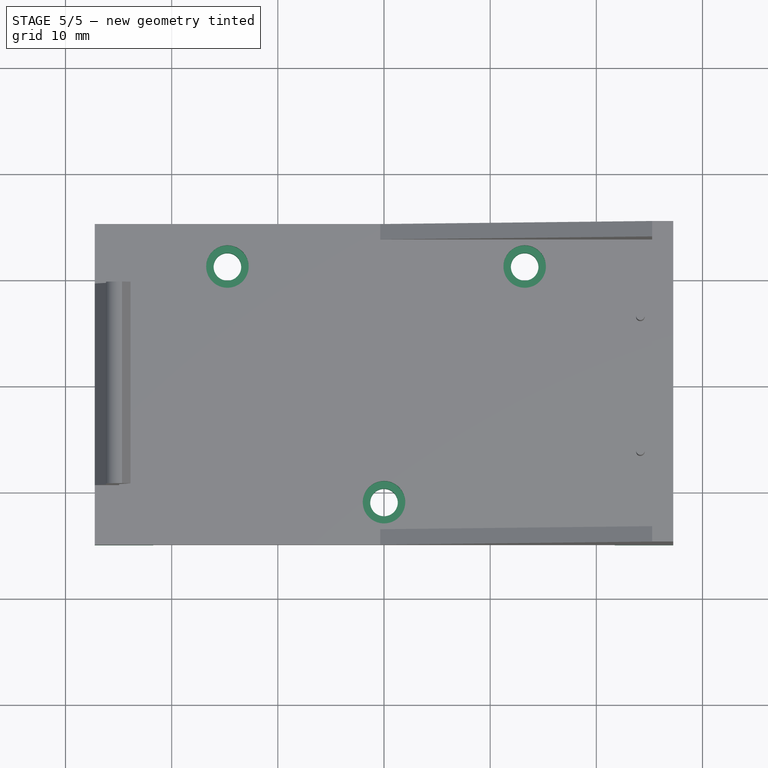
[diagram: stage 5 of 5 — top view after this stage's code; geometry added in this stage tinted green]
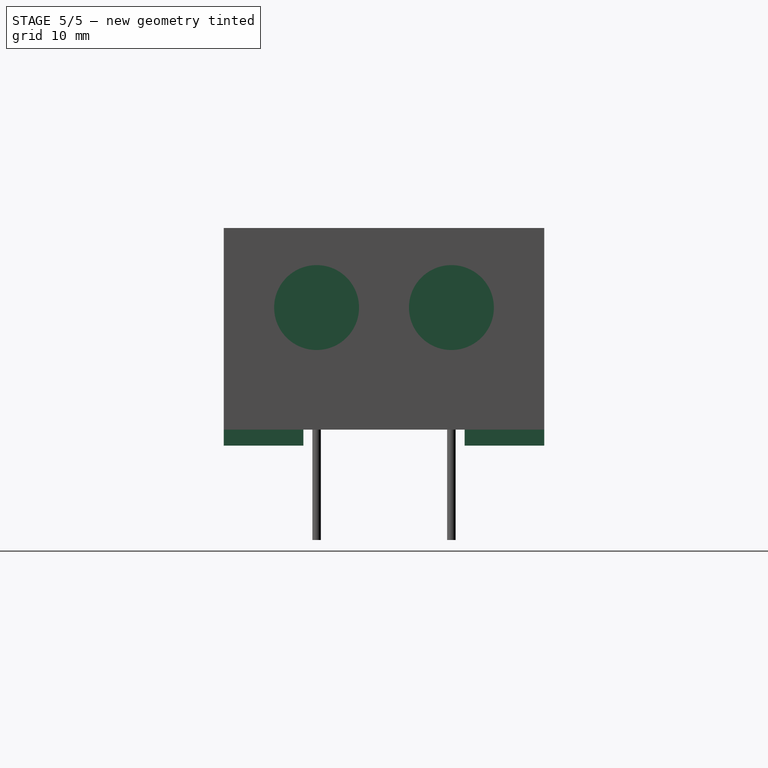
[diagram: stage 5 of 5 — right view after this stage's code; geometry added in this stage tinted green]
FEATURE [Sketcher::SketchObject] Sketch006  label="Sketch_Counterbore"
  ExternalGeometry = -> [Pad003]
  MapMode = 5
  Placement = pos=(0,0,2.5) rot=(0,0,1;0rad)
  Support = -> [Pad003]
  sketch-geometry (3):
    g0: Circle CenterX=-14.75 CenterY=11.1 CenterZ=0 NormalX=0 NormalY=0 NormalZ=1 AngleXU=0 Radius=2
    g1: Circle CenterX=13.25 CenterY=11.1 CenterZ=0 NormalX=0 NormalY=0 NormalZ=1 AngleXU=0 Radius=2
    g2: Circle CenterX=0 CenterY=-11.1 CenterZ=0 NormalX=0 NormalY=0 NormalZ=1 AngleXU=0 Radius=2
  constraints (6):
    c: Coincident(g0,g-3)
    c: Coincident(g1,g-4)
    c: Coincident(g2,g-5)
    c: Equal(g2,g1)
    c: Equal(g1,g0)
    c: Diameter(g0) = 4
FEATURE [PartDesign::Pocket] Pocket002  label="Pocket_Counterbore"
  BaseFeature = -> Pad003
  Length = 1.5
  Length2 = 100
  Profile = -> Sketch006
  Type = 0
FEATURE [Sketcher::SketchObject] Sketch007  label="Sketch_MountingHoles"
  ExternalGeometry = -> [Pocket002]
  MapMode = 5
  Placement = pos=(0,0,2.5) rot=(0,0,1;0rad)
  Support = -> [Pocket002]
  sketch-geometry (3):
    g0: Circle CenterX=-14.75 CenterY=11.1 CenterZ=0 NormalX=0 NormalY=0 NormalZ=1 AngleXU=0 Radius=1.3
    g1: Circle CenterX=13.25 CenterY=11.1 CenterZ=0 NormalX=0 NormalY=0 NormalZ=1 AngleXU=0 Radius=1.3
    g2: Circle CenterX=0 CenterY=-11.1 CenterZ=0 NormalX=0 NormalY=0 NormalZ=1 AngleXU=0 Radius=1.3
  constraints (6):
    c: Coincident(g0,g-3)
    c: Coincident(g1,g-4)
    c: Coincident(g2,g-5)
    c: Equal(g0,g1)
    c: Equal(g1,g2)
    c: Diameter(g0) = 2.6
FEATURE [PartDesign::Pocket] Pocket003  label="Pocket_MountingHoles"
  BaseFeature = -> Pocket002
  Length = 5
  Length2 = 100
  Profile = -> Sketch007
  Type = 1
FEATURE [Sketcher::SketchObject] Sketch008  label="Sketch_EdgePad"
  ExternalGeometry = -> [Pocket003]
  MapMode = 5
  Placement = pos=(0,0,0) rot=(1,0,0;3.14159rad)
  Support = -> [Pocket003]
  sketch-geometry (6):
    g0: LineSegment StartX=-27.25 StartY=15.1 StartZ=0 EndX=-21.75 EndY=15.1 EndZ=0
    g1: LineSegment StartX=-21.75 StartY=15.1 StartZ=0 EndX=-21.75 EndY=13.65 EndZ=0
    g2: LineSegment StartX=-21.75 StartY=13.65 StartZ=0 EndX=-25.8 EndY=13.65 EndZ=0
    g3: LineSegment StartX=-25.8 StartY=13.65 StartZ=0 EndX=-25.8 EndY=7.6 EndZ=0
    g4: LineSegment StartX=-25.8 StartY=7.6 StartZ=0 EndX=-27.25 EndY=7.6 EndZ=0
    g5: LineSegment StartX=-27.25 StartY=7.6 StartZ=0 EndX=-27.25 EndY=15.1 EndZ=0
  constraints (17):
    c: Coincident(g-4,g0)
    c: PointOnObject(g0,g-4)
    c: Coincident(g0,g1)
    c: Vertical(g1)
    c: Coincident(g1,g2)
    c: Horizontal(g2)
    c: Coincident(g2,g3)
    c: Vertical(g3)
    c: Coincident(g3,g4)
    c: PointOnObject(g4,g-3)
    c: Coincident(g4,g5)
    c: Coincident(g5,g0)
    c: Horizontal(g4)
    c: DistanceX(g0,g0) = 5.5
    c: DistanceY(g5,g5) = 7.5
    c: Equal(g1,g4)
    c: DistanceY(g1,g1) = 1.45
FEATURE [PartDesign::Pad] Pad004  label="Pad_Edge"
  BaseFeature = -> Pocket003
  Length = 1.5
  Length2 = 100
  Profile = -> Sketch008
  Type = 0
FEATURE [PartDesign::Mirrored] Mirrored
  MirrorPlane = -> Sketch008 [V_Axis]
FEATURE [PartDesign::Mirrored] Mirrored001
  MirrorPlane = -> Sketch008 [H_Axis]
FEATURE [PartDesign::MultiTransform] MultiTransform  label="MultiTransform_EdgePads"
  BaseFeature = -> Pad004
  Originals = -> [Pad004]
  Transformations = -> [Mirrored,Mirrored001]
FEATURE [Sketcher::SketchObject] Sketch012  label="Sketch_BatteryClipBore"
  MapMode = 5
  Placement = pos=(27.25,0,0) rot=(0.57735,0.57735,0.57735;2.0944rad)
  Support = -> [MultiTransform]
  sketch-geometry (2):
    g0: Circle CenterX=-6.35 CenterY=11.5 CenterZ=0 NormalX=0 NormalY=0 NormalZ=1 AngleXU=0 Radius=4
    g1: Circle CenterX=6.35 CenterY=11.5 CenterZ=0 NormalX=0 NormalY=0 NormalZ=1 AngleXU=0 Radius=4
  constraints (5):
    c: Symmetric(g0,g1,g-2)
    c: DistanceX(g0,g1) = 12.7
    c: DistanceY(g-1,g1) = 11.5
    c: Equal(g0,g1)
    c: Diameter(g1) = 8
FEATURE [PartDesign::Pocket] Pocket006  label="Pocket_BatteryClipBore"
  BaseFeature = -> MultiTransform
  Length = 1
  Length2 = 100
  Profile = -> Sketch012
  Type = 0
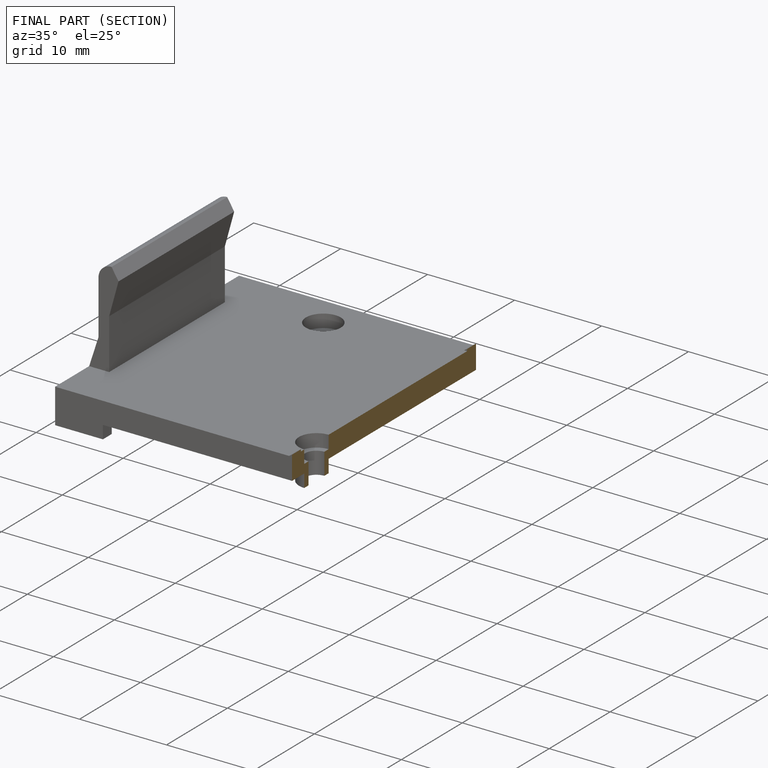
[diagram: finished part — half-section view (interior)]
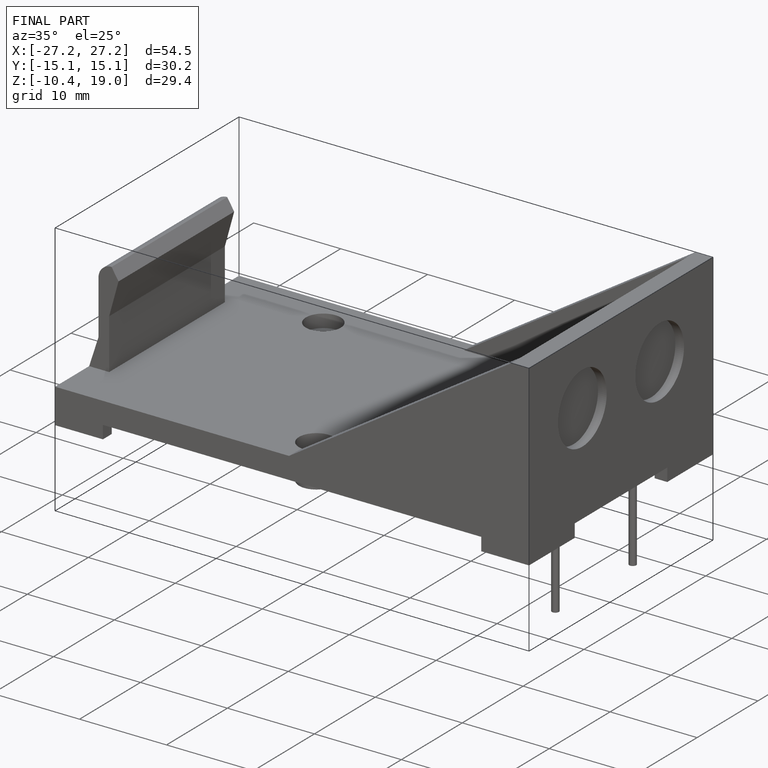
[diagram: finished part — iso view with bounding-box wireframe]
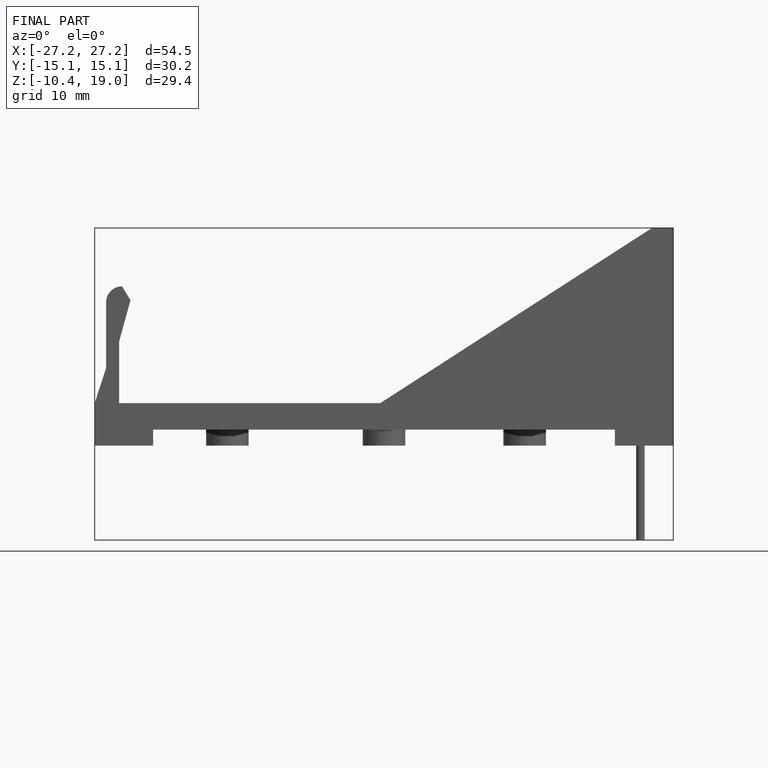
[diagram: finished part — front view with bounding-box wireframe]
